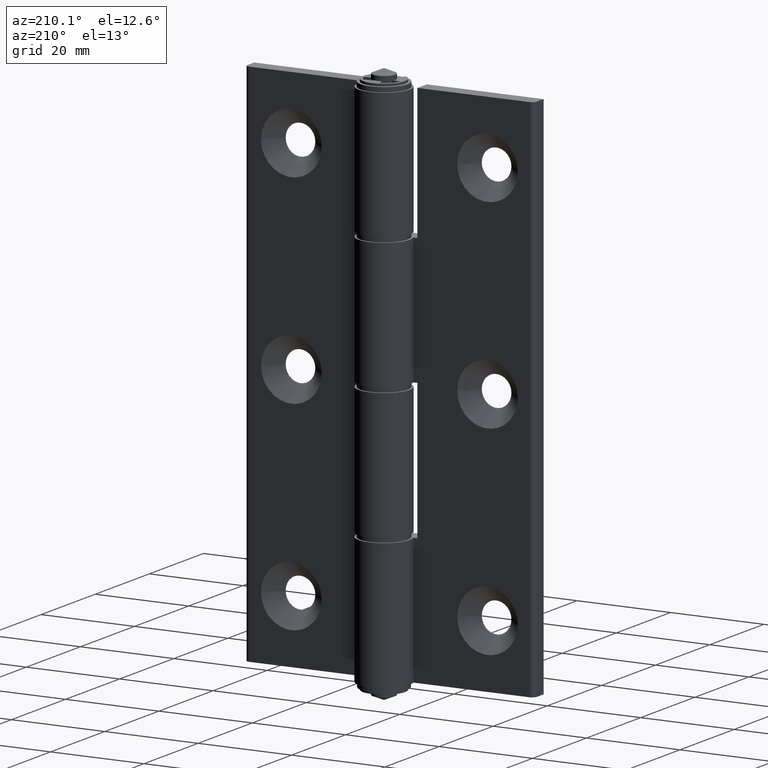
[diagram: clean part render]
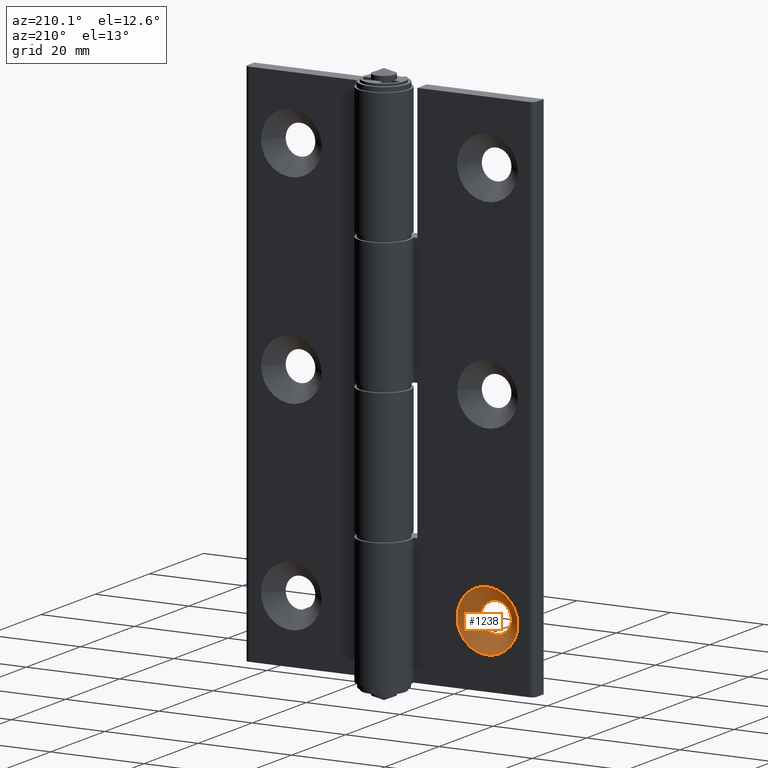
[diagram: same view with one face highlighted and labeled with its STEP entity id]
A machine part, auxiliary view. The second image highlights one B-rep face of the part: STEP entity #1238.
In plain terms, the highlighted conical surface has half-angle 45 deg.
Its self-contained STEP definition (entity closure, byte-faithful):
#308=FACE_BOUND('',#445,.T.);
#363=FACE_OUTER_BOUND('',#444,.T.);
#444=EDGE_LOOP('',(#924));
#445=EDGE_LOOP('',(#925));
#577=CIRCLE('',#1328,6.5);
#578=CIRCLE('',#1329,3.25);
#651=VERTEX_POINT('',#1921);
#652=VERTEX_POINT('',#1923);
#769=EDGE_CURVE('',#651,#651,#577,.T.);
#770=EDGE_CURVE('',#652,#652,#578,.T.);
#924=ORIENTED_EDGE('',*,*,#769,.F.);
#925=ORIENTED_EDGE('',*,*,#770,.F.);
#1229=CONICAL_SURFACE('',#1327,4.875,45.);
#1238=ADVANCED_FACE('',(#363,#308),#1229,.F.);
#1327=AXIS2_PLACEMENT_3D('',#1920,#1503,#1504);
#1328=AXIS2_PLACEMENT_3D('',#1922,#1505,#1506);
#1329=AXIS2_PLACEMENT_3D('',#1924,#1507,#1508);
#1503=DIRECTION('center_axis',(-2.50695521689551E-16,1.,0.));
#1504=DIRECTION('ref_axis',(1.,2.50695521689551E-16,-7.14069536138054E-16));
#1505=DIRECTION('center_axis',(2.50695521689551E-16,-1.,0.));
#1506=DIRECTION('ref_axis',(1.,2.50695521689551E-16,-7.14069536138054E-16));
#1507=DIRECTION('center_axis',(-2.50695521689551E-16,1.,0.));
#1508=DIRECTION('ref_axis',(1.,2.50695521689551E-16,-7.14069536138054E-16));
#1920=CARTESIAN_POINT('Origin',(-21.,1.875,-99.5));
#1921=CARTESIAN_POINT('',(-14.5,3.5,-99.5));
#1922=CARTESIAN_POINT('Origin',(-21.,3.5,-99.5));
#1923=CARTESIAN_POINT('',(-17.75,0.249999999999996,-99.5));
#1924=CARTESIAN_POINT('Origin',(-21.,0.250000000000004,-99.5));